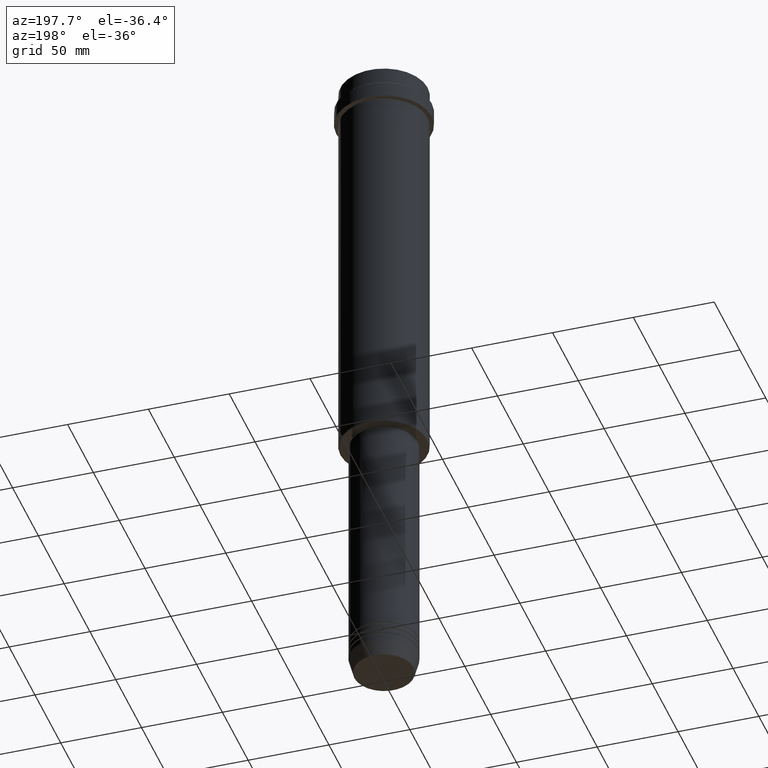
[diagram: clean part render]
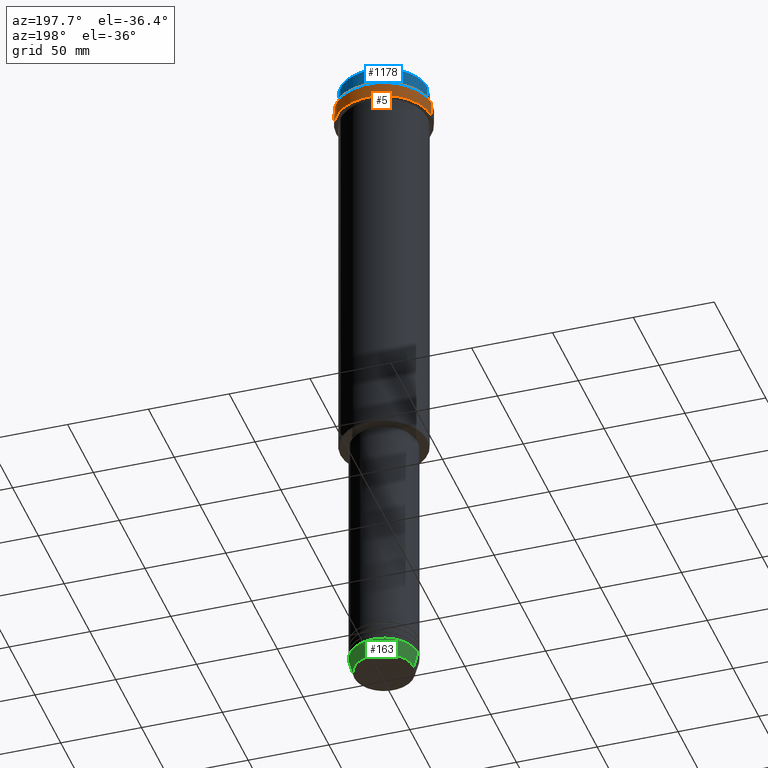
[diagram: same view with three faces highlighted in distinct colors, each labeled with its STEP entity id]
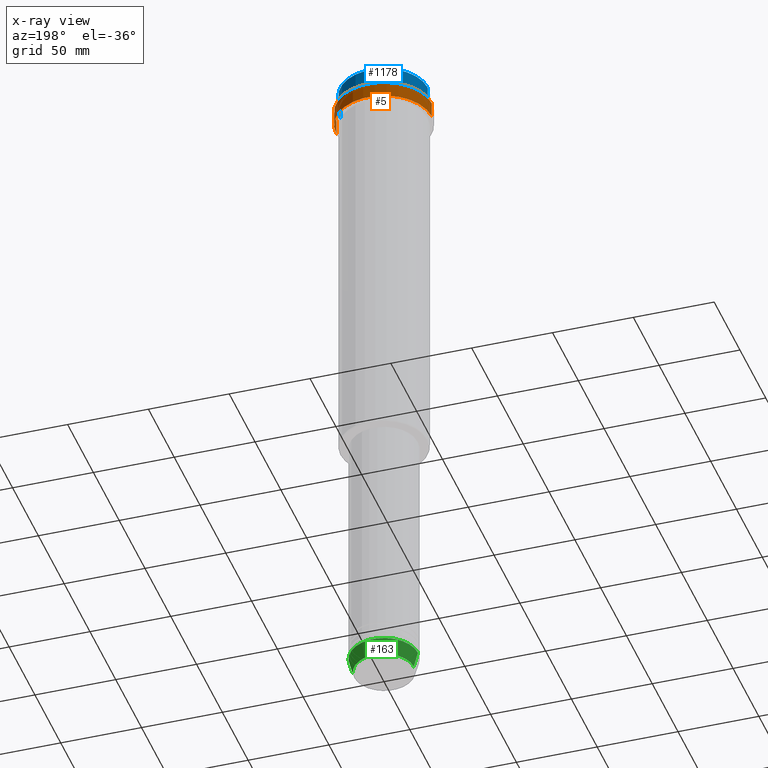
[diagram: x-ray of the same camera — body ghosted, the three highlighted faces saturated]
A machine part, auxiliary view with three faces highlighted in distinct colors.
The next image is the same camera in x-ray (body ghosted, the three faces saturated) — at least one of them is partly hidden behind the body in this view.
Their STEP definitions:

[orange] entity #5 — the highlighted cylindrical surface (partial cylindrical patch) has radius 29.5 mm, axis along (-0, -0, 1).
#5 = ADVANCED_FACE ( 'NONE', ( #76 ), #594, .T. ) ;
#60 = DIRECTION ( 'NONE',  ( -0.000000000000000000, -0.000000000000000000, 1.000000000000000000 ) ) ;
#76 = FACE_OUTER_BOUND ( 'NONE', #1048, .T. ) ;
#77 = LINE ( 'NONE', #708, #1311 ) ;
#86 = DIRECTION ( 'NONE',  ( -0.000000000000000000, -0.000000000000000000, 1.000000000000000000 ) ) ;
#161 = CARTESIAN_POINT ( 'NONE',  ( 0.000000000000000000, 0.000000000000000000, -22.00000000000000711 ) ) ;
#162 = EDGE_CURVE ( 'NONE', #261, #1024, #1089, .T. ) ;
#239 = ORIENTED_EDGE ( 'NONE', *, *, #410, .F. ) ;
#259 = CARTESIAN_POINT ( 'NONE',  ( 29.49999999999999645, 0.000000000000000000, -22.00000000000000711 ) ) ;
#261 = VERTEX_POINT ( 'NONE', #259 ) ;
#280 = DIRECTION ( 'NONE',  ( 1.000000000000000000, 0.000000000000000000, 0.000000000000000000 ) ) ;
#395 = VERTEX_POINT ( 'NONE', #1283 ) ;
#410 = EDGE_CURVE ( 'NONE', #261, #395, #618, .T. ) ;
#480 = DIRECTION ( 'NONE',  ( 1.000000000000000000, 0.000000000000000000, 0.000000000000000000 ) ) ;
#507 = DIRECTION ( 'NONE',  ( 0.000000000000000000, 0.000000000000000000, -1.000000000000000000 ) ) ;
#594 = CYLINDRICAL_SURFACE ( 'NONE', #962, 29.50000000000000000 ) ;
#616 = CARTESIAN_POINT ( 'NONE',  ( -29.49999999999999645, 3.612708057484690815E-15, -22.00000000000000711 ) ) ;
#618 = LINE ( 'NONE', #729, #1292 ) ;
#633 = CARTESIAN_POINT ( 'NONE',  ( 0.000000000000000000, 0.000000000000000000, -12.50000000000000355 ) ) ;
#708 = CARTESIAN_POINT ( 'NONE',  ( -29.50000000000000000, 3.612708057484691604E-15, 0.000000000000000000 ) ) ;
#729 = CARTESIAN_POINT ( 'NONE',  ( 29.50000000000000000, 0.000000000000000000, 0.000000000000000000 ) ) ;
#741 = DIRECTION ( 'NONE',  ( 1.000000000000000000, 0.000000000000000000, 0.000000000000000000 ) ) ;
#899 = ORIENTED_EDGE ( 'NONE', *, *, #1397, .T. ) ;
#962 = AXIS2_PLACEMENT_3D ( 'NONE', #1253, #60, #280 ) ;
#983 = ORIENTED_EDGE ( 'NONE', *, *, #162, .T. ) ;
#1017 = EDGE_CURVE ( 'NONE', #1024, #1228, #77, .T. ) ;
#1024 = VERTEX_POINT ( 'NONE', #616 ) ;
#1037 = DIRECTION ( 'NONE',  ( -0.000000000000000000, -0.000000000000000000, 1.000000000000000000 ) ) ;
#1048 = EDGE_LOOP ( 'NONE', ( #983, #1317, #899, #239 ) ) ;
#1089 = CIRCLE ( 'NONE', #1412, 29.49999999999999645 ) ;
#1115 = CIRCLE ( 'NONE', #1166, 29.50000000000000000 ) ;
#1166 = AXIS2_PLACEMENT_3D ( 'NONE', #633, #507, #741 ) ;
#1185 = DIRECTION ( 'NONE',  ( -0.000000000000000000, -0.000000000000000000, 1.000000000000000000 ) ) ;
#1228 = VERTEX_POINT ( 'NONE', #1242 ) ;
#1242 = CARTESIAN_POINT ( 'NONE',  ( -29.50000000000000000, 3.612708057484691604E-15, -12.50000000000000355 ) ) ;
#1253 = CARTESIAN_POINT ( 'NONE',  ( 0.000000000000000000, 0.000000000000000000, 0.000000000000000000 ) ) ;
#1283 = CARTESIAN_POINT ( 'NONE',  ( 29.50000000000000000, 0.000000000000000000, -12.50000000000000355 ) ) ;
#1292 = VECTOR ( 'NONE', #86, 1000.000000000000000 ) ;
#1311 = VECTOR ( 'NONE', #1185, 1000.000000000000000 ) ;
#1317 = ORIENTED_EDGE ( 'NONE', *, *, #1017, .T. ) ;
#1397 = EDGE_CURVE ( 'NONE', #1228, #395, #1115, .T. ) ;
#1412 = AXIS2_PLACEMENT_3D ( 'NONE', #161, #1037, #480 ) ;

[blue] entity #1178 — the highlighted cylindrical surface (partial cylindrical patch) has radius 27 mm, axis along (-0, -0, 1).
#43 = VECTOR ( 'NONE', #240, 1000.000000000000000 ) ;
#56 = DIRECTION ( 'NONE',  ( 1.000000000000000000, 0.000000000000000000, 0.000000000000000000 ) ) ;
#122 = FACE_OUTER_BOUND ( 'NONE', #579, .T. ) ;
#129 = LINE ( 'NONE', #452, #1055 ) ;
#155 = DIRECTION ( 'NONE',  ( 1.000000000000000000, 0.000000000000000000, 0.000000000000000000 ) ) ;
#168 = CARTESIAN_POINT ( 'NONE',  ( 0.000000000000000000, 0.000000000000000000, -0.4999999999999796274 ) ) ;
#193 = VERTEX_POINT ( 'NONE', #289 ) ;
#240 = DIRECTION ( 'NONE',  ( -0.000000000000000000, -0.000000000000000000, 1.000000000000000000 ) ) ;
#289 = CARTESIAN_POINT ( 'NONE',  ( -27.00000000000000355, 3.306546357697854128E-15, -0.4999999999999796274 ) ) ;
#329 = EDGE_CURVE ( 'NONE', #752, #193, #458, .T. ) ;
#377 = EDGE_CURVE ( 'NONE', #699, #752, #495, .T. ) ;
#452 = CARTESIAN_POINT ( 'NONE',  ( 27.00000000000000355, 0.000000000000000000, 0.000000000000000000 ) ) ;
#458 = LINE ( 'NONE', #709, #43 ) ;
#479 = ORIENTED_EDGE ( 'NONE', *, *, #1262, .F. ) ;
#481 = VERTEX_POINT ( 'NONE', #591 ) ;
#495 = CIRCLE ( 'NONE', #611, 27.00000000000000355 ) ;
#546 = CARTESIAN_POINT ( 'NONE',  ( 0.000000000000000000, 0.000000000000000000, 0.000000000000000000 ) ) ;
#579 = EDGE_LOOP ( 'NONE', ( #724, #1360, #771, #479 ) ) ;
#591 = CARTESIAN_POINT ( 'NONE',  ( 27.00000000000000355, 0.000000000000000000, -0.4999999999999796274 ) ) ;
#611 = AXIS2_PLACEMENT_3D ( 'NONE', #1043, #1378, #56 ) ;
#699 = VERTEX_POINT ( 'NONE', #863 ) ;
#709 = CARTESIAN_POINT ( 'NONE',  ( -27.00000000000000355, 3.306546357697854128E-15, 0.000000000000000000 ) ) ;
#724 = ORIENTED_EDGE ( 'NONE', *, *, #377, .T. ) ;
#752 = VERTEX_POINT ( 'NONE', #907 ) ;
#771 = ORIENTED_EDGE ( 'NONE', *, *, #851, .T. ) ;
#774 = DIRECTION ( 'NONE',  ( 1.000000000000000000, 0.000000000000000000, 0.000000000000000000 ) ) ;
#851 = EDGE_CURVE ( 'NONE', #193, #481, #1200, .T. ) ;
#863 = CARTESIAN_POINT ( 'NONE',  ( 27.00000000000000355, 0.000000000000000000, -11.00000000000000178 ) ) ;
#907 = CARTESIAN_POINT ( 'NONE',  ( -27.00000000000000355, 3.306546357697854128E-15, -11.00000000000000178 ) ) ;
#919 = DIRECTION ( 'NONE',  ( 0.000000000000000000, 0.000000000000000000, -1.000000000000000000 ) ) ;
#996 = DIRECTION ( 'NONE',  ( -0.000000000000000000, -0.000000000000000000, 1.000000000000000000 ) ) ;
#1043 = CARTESIAN_POINT ( 'NONE',  ( 0.000000000000000000, 0.000000000000000000, -11.00000000000000178 ) ) ;
#1055 = VECTOR ( 'NONE', #1220, 1000.000000000000000 ) ;
#1102 = CYLINDRICAL_SURFACE ( 'NONE', #1315, 27.00000000000000355 ) ;
#1178 = ADVANCED_FACE ( 'NONE', ( #122 ), #1102, .T. ) ;
#1200 = CIRCLE ( 'NONE', #1288, 27.00000000000000355 ) ;
#1220 = DIRECTION ( 'NONE',  ( -0.000000000000000000, -0.000000000000000000, 1.000000000000000000 ) ) ;
#1262 = EDGE_CURVE ( 'NONE', #699, #481, #129, .T. ) ;
#1288 = AXIS2_PLACEMENT_3D ( 'NONE', #168, #919, #155 ) ;
#1315 = AXIS2_PLACEMENT_3D ( 'NONE', #546, #996, #774 ) ;
#1360 = ORIENTED_EDGE ( 'NONE', *, *, #329, .T. ) ;
#1378 = DIRECTION ( 'NONE',  ( -0.000000000000000000, -0.000000000000000000, 1.000000000000000000 ) ) ;

[green] entity #163 — the highlighted conical surface has half-angle 15 deg.
#11 = AXIS2_PLACEMENT_3D ( 'NONE', #681, #1049, #148 ) ;
#30 = DIRECTION ( 'NONE',  ( 1.000000000000000000, 0.000000000000000000, 0.000000000000000000 ) ) ;
#55 = DIRECTION ( 'NONE',  ( -0.000000000000000000, -0.000000000000000000, 1.000000000000000000 ) ) ;
#59 = ORIENTED_EDGE ( 'NONE', *, *, #769, .F. ) ;
#148 = DIRECTION ( 'NONE',  ( 1.000000000000000000, 0.000000000000000000, 0.000000000000000000 ) ) ;
#163 = ADVANCED_FACE ( 'NONE', ( #297 ), #1167, .T. ) ;
#254 = CARTESIAN_POINT ( 'NONE',  ( 21.00000000000000000, 0.000000000000000000, -413.0000000000000000 ) ) ;
#297 = FACE_OUTER_BOUND ( 'NONE', #662, .T. ) ;
#361 = VECTOR ( 'NONE', #1136, 1000.000000000000114 ) ;
#400 = LINE ( 'NONE', #1181, #979 ) ;
#490 = DIRECTION ( 'NONE',  ( 0.2588190451025211836, 0.000000000000000000, 0.9659258262890680902 ) ) ;
#497 = AXIS2_PLACEMENT_3D ( 'NONE', #1333, #55, #30 ) ;
#499 = DIRECTION ( 'NONE',  ( -0.000000000000000000, -0.000000000000000000, 1.000000000000000000 ) ) ;
#518 = CIRCLE ( 'NONE', #497, 21.00000000000000000 ) ;
#533 = ORIENTED_EDGE ( 'NONE', *, *, #837, .T. ) ;
#544 = VERTEX_POINT ( 'NONE', #254 ) ;
#550 = VERTEX_POINT ( 'NONE', #1212 ) ;
#625 = CARTESIAN_POINT ( 'NONE',  ( 18.41980749484383750, 0.000000000000000000, -422.6294095225512137 ) ) ;
#662 = EDGE_LOOP ( 'NONE', ( #533, #920, #59, #1150 ) ) ;
#681 = CARTESIAN_POINT ( 'NONE',  ( 0.000000000000000000, 0.000000000000000000, -422.6294095225512137 ) ) ;
#710 = CARTESIAN_POINT ( 'NONE',  ( -21.00000000000000000, 2.571758278209441661E-15, -413.0000000000000000 ) ) ;
#735 = CARTESIAN_POINT ( 'NONE',  ( -18.41980749484383750, 2.413767053578267458E-15, -422.6294095225512137 ) ) ;
#769 = EDGE_CURVE ( 'NONE', #544, #550, #518, .T. ) ;
#837 = EDGE_CURVE ( 'NONE', #1056, #1003, #1184, .T. ) ;
#920 = ORIENTED_EDGE ( 'NONE', *, *, #1281, .T. ) ;
#979 = VECTOR ( 'NONE', #490, 1000.000000000000114 ) ;
#980 = AXIS2_PLACEMENT_3D ( 'NONE', #1363, #499, #1154 ) ;
#1003 = VERTEX_POINT ( 'NONE', #735 ) ;
#1049 = DIRECTION ( 'NONE',  ( -0.000000000000000000, -0.000000000000000000, 1.000000000000000000 ) ) ;
#1051 = EDGE_CURVE ( 'NONE', #1056, #544, #400, .T. ) ;
#1056 = VERTEX_POINT ( 'NONE', #625 ) ;
#1136 = DIRECTION ( 'NONE',  ( -0.2588190451025211836, 3.169619151431770488E-17, 0.9659258262890680902 ) ) ;
#1150 = ORIENTED_EDGE ( 'NONE', *, *, #1051, .F. ) ;
#1154 = DIRECTION ( 'NONE',  ( 1.000000000000000000, 0.000000000000000000, 0.000000000000000000 ) ) ;
#1167 = CONICAL_SURFACE ( 'NONE', #980, 21.00000000000000000, 0.2617993877991499074 ) ;
#1181 = CARTESIAN_POINT ( 'NONE',  ( 21.00000000000000000, 0.000000000000000000, -413.0000000000000000 ) ) ;
#1184 = CIRCLE ( 'NONE', #11, 18.41980749484383750 ) ;
#1212 = CARTESIAN_POINT ( 'NONE',  ( -21.00000000000000000, 2.571758278209441661E-15, -413.0000000000000000 ) ) ;
#1281 = EDGE_CURVE ( 'NONE', #1003, #550, #1341, .T. ) ;
#1333 = CARTESIAN_POINT ( 'NONE',  ( 0.000000000000000000, 0.000000000000000000, -413.0000000000000000 ) ) ;
#1341 = LINE ( 'NONE', #710, #361 ) ;
#1363 = CARTESIAN_POINT ( 'NONE',  ( 0.000000000000000000, 0.000000000000000000, -413.0000000000000000 ) ) ;